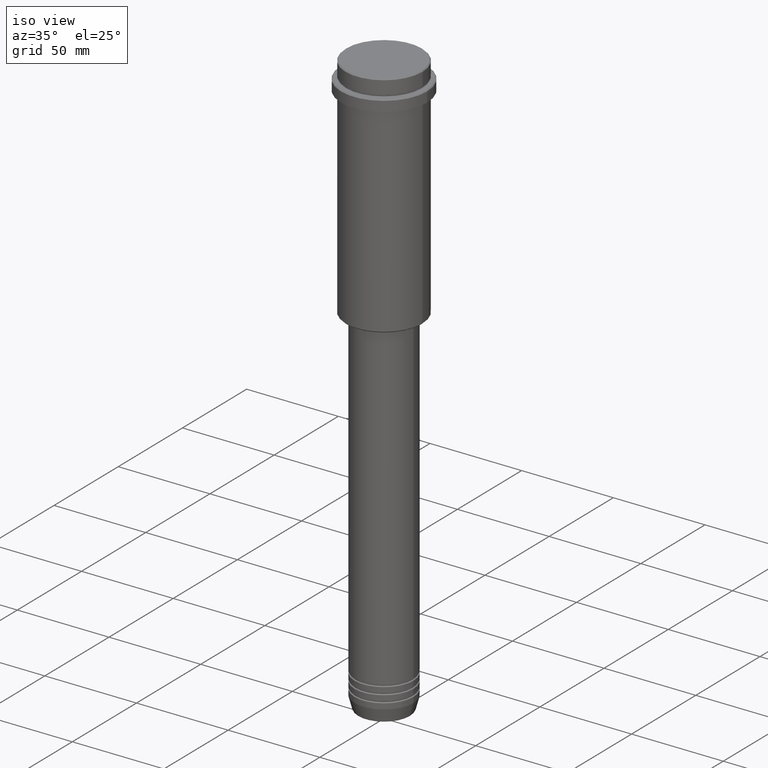
[diagram: clean part render]
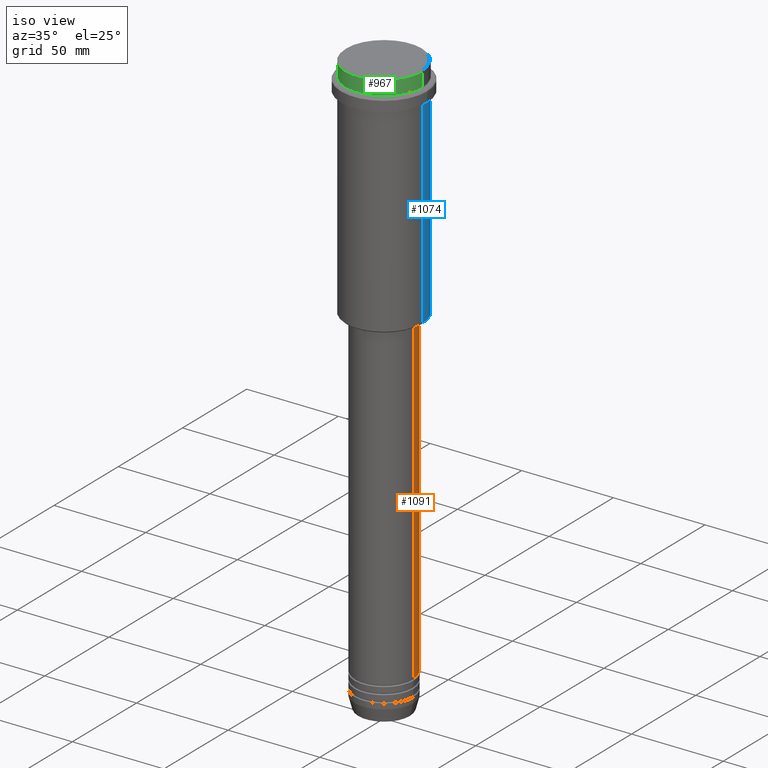
[diagram: same view with three faces highlighted in distinct colors, each labeled with its STEP entity id]
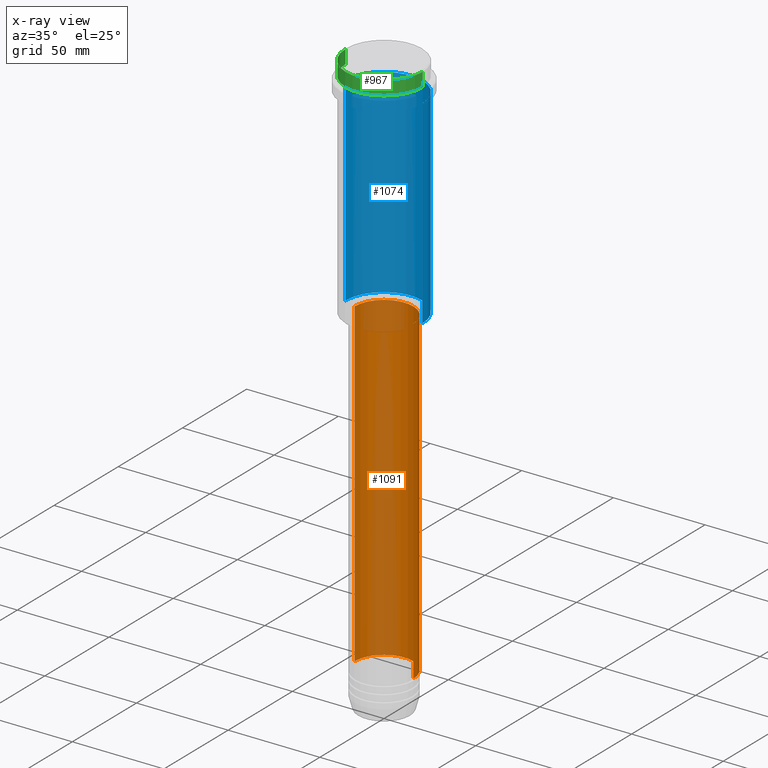
[diagram: x-ray of the same camera — body ghosted, the three highlighted faces saturated]
A machine part, iso view with three faces highlighted in distinct colors.
The next image is the same camera in x-ray (body ghosted, the three faces saturated) — at least one of them is partly hidden behind the body in this view.
Their STEP definitions:

[orange] entity #1091 — the highlighted cylindrical surface (edge-blend (fillet) strip) has radius 16 mm, axis along (-0, -0, 1).
#20 = EDGE_CURVE ( 'NONE', #558, #226, #1011, .T. ) ;
#53 = ORIENTED_EDGE ( 'NONE', *, *, #1264, .T. ) ;
#68 = CARTESIAN_POINT ( 'NONE',  ( 16.00000000000000355, 0.000000000000000000, -125.9999999999999147 ) ) ;
#226 = VERTEX_POINT ( 'NONE', #820 ) ;
#245 = ORIENTED_EDGE ( 'NONE', *, *, #479, .F. ) ;
#275 = EDGE_CURVE ( 'NONE', #1260, #226, #719, .T. ) ;
#326 = CYLINDRICAL_SURFACE ( 'NONE', #1113, 16.00000000000000000 ) ;
#352 = FACE_OUTER_BOUND ( 'NONE', #635, .T. ) ;
#353 = CARTESIAN_POINT ( 'NONE',  ( -16.00000000000000000, 1.959434878635765131E-15, -300.9999999999998863 ) ) ;
#385 = CIRCLE ( 'NONE', #1187, 16.00000000000000000 ) ;
#476 = DIRECTION ( 'NONE',  ( -0.000000000000000000, -0.000000000000000000, 1.000000000000000000 ) ) ;
#478 = CARTESIAN_POINT ( 'NONE',  ( 16.00000000000000000, 0.000000000000000000, 0.000000000000000000 ) ) ;
#479 = EDGE_CURVE ( 'NONE', #844, #1260, #630, .T. ) ;
#535 = ORIENTED_EDGE ( 'NONE', *, *, #20, .T. ) ;
#542 = DIRECTION ( 'NONE',  ( 1.000000000000000000, 0.000000000000000000, 0.000000000000000000 ) ) ;
#558 = VERTEX_POINT ( 'NONE', #353 ) ;
#572 = DIRECTION ( 'NONE',  ( 1.000000000000000000, 0.000000000000000000, 0.000000000000000000 ) ) ;
#630 = LINE ( 'NONE', #478, #1139 ) ;
#635 = EDGE_LOOP ( 'NONE', ( #53, #535, #1055, #245 ) ) ;
#691 = CARTESIAN_POINT ( 'NONE',  ( 16.00000000000000000, 0.000000000000000000, -300.9999999999998863 ) ) ;
#692 = VECTOR ( 'NONE', #476, 1000.000000000000000 ) ;
#719 = CIRCLE ( 'NONE', #1181, 16.00000000000000355 ) ;
#793 = CARTESIAN_POINT ( 'NONE',  ( 0.000000000000000000, 0.000000000000000000, 0.000000000000000000 ) ) ;
#820 = CARTESIAN_POINT ( 'NONE',  ( -16.00000000000000355, 1.959434878635765526E-15, -125.9999999999999147 ) ) ;
#844 = VERTEX_POINT ( 'NONE', #691 ) ;
#878 = DIRECTION ( 'NONE',  ( -0.000000000000000000, -0.000000000000000000, 1.000000000000000000 ) ) ;
#908 = DIRECTION ( 'NONE',  ( -0.000000000000000000, -0.000000000000000000, 1.000000000000000000 ) ) ;
#937 = CARTESIAN_POINT ( 'NONE',  ( 0.000000000000000000, 0.000000000000000000, -300.9999999999998863 ) ) ;
#1011 = LINE ( 'NONE', #1112, #692 ) ;
#1055 = ORIENTED_EDGE ( 'NONE', *, *, #275, .F. ) ;
#1091 = ADVANCED_FACE ( 'NONE', ( #352 ), #326, .T. ) ;
#1112 = CARTESIAN_POINT ( 'NONE',  ( -16.00000000000000000, 1.959434878635765131E-15, 0.000000000000000000 ) ) ;
#1113 = AXIS2_PLACEMENT_3D ( 'NONE', #793, #1118, #542 ) ;
#1118 = DIRECTION ( 'NONE',  ( -0.000000000000000000, -0.000000000000000000, 1.000000000000000000 ) ) ;
#1119 = CARTESIAN_POINT ( 'NONE',  ( 0.000000000000000000, 0.000000000000000000, -125.9999999999999147 ) ) ;
#1139 = VECTOR ( 'NONE', #878, 1000.000000000000000 ) ;
#1147 = DIRECTION ( 'NONE',  ( -0.000000000000000000, -0.000000000000000000, 1.000000000000000000 ) ) ;
#1181 = AXIS2_PLACEMENT_3D ( 'NONE', #1119, #1147, #572 ) ;
#1187 = AXIS2_PLACEMENT_3D ( 'NONE', #937, #908, #1240 ) ;
#1240 = DIRECTION ( 'NONE',  ( 1.000000000000000000, 0.000000000000000000, 0.000000000000000000 ) ) ;
#1260 = VERTEX_POINT ( 'NONE', #68 ) ;
#1264 = EDGE_CURVE ( 'NONE', #844, #558, #385, .T. ) ;

[blue] entity #1074 — the highlighted cylindrical surface (partial cylindrical patch) has radius 21 mm, axis along (-0, -0, 1).
#95 = CARTESIAN_POINT ( 'NONE',  ( -20.99999999999999645, 2.571758278209441267E-15, -124.4999999999999005 ) ) ;
#198 = EDGE_LOOP ( 'NONE', ( #416, #1199, #254, #1126 ) ) ;
#240 = CARTESIAN_POINT ( 'NONE',  ( -20.99999999999999645, 2.571758278209441267E-15, -16.00000000000000355 ) ) ;
#254 = ORIENTED_EDGE ( 'NONE', *, *, #1286, .F. ) ;
#280 = CARTESIAN_POINT ( 'NONE',  ( 20.99999999999999645, 0.000000000000000000, -16.00000000000000355 ) ) ;
#291 = AXIS2_PLACEMENT_3D ( 'NONE', #417, #1167, #398 ) ;
#309 = AXIS2_PLACEMENT_3D ( 'NONE', #1255, #493, #822 ) ;
#340 = CARTESIAN_POINT ( 'NONE',  ( 0.000000000000000000, 0.000000000000000000, 0.000000000000000000 ) ) ;
#379 = EDGE_CURVE ( 'NONE', #1414, #407, #831, .T. ) ;
#398 = DIRECTION ( 'NONE',  ( -1.000000000000000000, 0.000000000000000000, 0.000000000000000000 ) ) ;
#407 = VERTEX_POINT ( 'NONE', #280 ) ;
#416 = ORIENTED_EDGE ( 'NONE', *, *, #1380, .T. ) ;
#417 = CARTESIAN_POINT ( 'NONE',  ( 0.000000000000000000, 0.000000000000000000, -124.4999999999999005 ) ) ;
#493 = DIRECTION ( 'NONE',  ( -0.000000000000000000, -0.000000000000000000, 1.000000000000000000 ) ) ;
#603 = VECTOR ( 'NONE', #1056, 1000.000000000000000 ) ;
#611 = LINE ( 'NONE', #826, #973 ) ;
#667 = VERTEX_POINT ( 'NONE', #240 ) ;
#671 = CYLINDRICAL_SURFACE ( 'NONE', #1088, 20.99999999999999645 ) ;
#680 = FACE_OUTER_BOUND ( 'NONE', #198, .T. ) ;
#822 = DIRECTION ( 'NONE',  ( 1.000000000000000000, 0.000000000000000000, 0.000000000000000000 ) ) ;
#826 = CARTESIAN_POINT ( 'NONE',  ( -20.99999999999999645, 2.571758278209441267E-15, 0.000000000000000000 ) ) ;
#831 = LINE ( 'NONE', #1150, #603 ) ;
#840 = CARTESIAN_POINT ( 'NONE',  ( 20.99999999999999645, 0.000000000000000000, -124.4999999999999005 ) ) ;
#930 = CIRCLE ( 'NONE', #309, 20.99999999999999645 ) ;
#973 = VECTOR ( 'NONE', #1267, 1000.000000000000000 ) ;
#1056 = DIRECTION ( 'NONE',  ( -0.000000000000000000, -0.000000000000000000, 1.000000000000000000 ) ) ;
#1074 = ADVANCED_FACE ( 'NONE', ( #680 ), #671, .T. ) ;
#1088 = AXIS2_PLACEMENT_3D ( 'NONE', #340, #1213, #1107 ) ;
#1107 = DIRECTION ( 'NONE',  ( 1.000000000000000000, 0.000000000000000000, 0.000000000000000000 ) ) ;
#1126 = ORIENTED_EDGE ( 'NONE', *, *, #379, .F. ) ;
#1150 = CARTESIAN_POINT ( 'NONE',  ( 20.99999999999999645, 0.000000000000000000, 0.000000000000000000 ) ) ;
#1167 = DIRECTION ( 'NONE',  ( -0.000000000000000000, -0.000000000000000000, 1.000000000000000000 ) ) ;
#1199 = ORIENTED_EDGE ( 'NONE', *, *, #1374, .T. ) ;
#1208 = CIRCLE ( 'NONE', #291, 20.99999999999999645 ) ;
#1213 = DIRECTION ( 'NONE',  ( -0.000000000000000000, -0.000000000000000000, 1.000000000000000000 ) ) ;
#1255 = CARTESIAN_POINT ( 'NONE',  ( 0.000000000000000000, 0.000000000000000000, -16.00000000000000355 ) ) ;
#1267 = DIRECTION ( 'NONE',  ( -0.000000000000000000, -0.000000000000000000, 1.000000000000000000 ) ) ;
#1286 = EDGE_CURVE ( 'NONE', #407, #667, #930, .T. ) ;
#1314 = VERTEX_POINT ( 'NONE', #95 ) ;
#1374 = EDGE_CURVE ( 'NONE', #1314, #667, #611, .T. ) ;
#1380 = EDGE_CURVE ( 'NONE', #1414, #1314, #1208, .T. ) ;
#1414 = VERTEX_POINT ( 'NONE', #840 ) ;

[green] entity #967 — the highlighted cylindrical surface (partial cylindrical patch) has radius 21 mm, axis along (-0, -0, 1).
#2 = ORIENTED_EDGE ( 'NONE', *, *, #166, .T. ) ;
#17 = AXIS2_PLACEMENT_3D ( 'NONE', #1392, #842, #1050 ) ;
#38 = CIRCLE ( 'NONE', #266, 20.99999999999999645 ) ;
#45 = EDGE_CURVE ( 'NONE', #601, #761, #38, .T. ) ;
#56 = AXIS2_PLACEMENT_3D ( 'NONE', #986, #317, #93 ) ;
#93 = DIRECTION ( 'NONE',  ( 1.000000000000000000, 0.000000000000000000, 0.000000000000000000 ) ) ;
#140 = CARTESIAN_POINT ( 'NONE',  ( 0.000000000000000000, 0.000000000000000000, -7.999999999999998224 ) ) ;
#166 = EDGE_CURVE ( 'NONE', #935, #273, #1383, .T. ) ;
#208 = FACE_OUTER_BOUND ( 'NONE', #987, .T. ) ;
#219 = VECTOR ( 'NONE', #913, 1000.000000000000000 ) ;
#266 = AXIS2_PLACEMENT_3D ( 'NONE', #140, #843, #823 ) ;
#273 = VERTEX_POINT ( 'NONE', #795 ) ;
#317 = DIRECTION ( 'NONE',  ( 0.000000000000000000, 0.000000000000000000, -1.000000000000000000 ) ) ;
#348 = CARTESIAN_POINT ( 'NONE',  ( -20.99999999999999645, 2.571758278209441267E-15, -7.999999999999998224 ) ) ;
#367 = ORIENTED_EDGE ( 'NONE', *, *, #1131, .F. ) ;
#391 = LINE ( 'NONE', #1375, #219 ) ;
#538 = LINE ( 'NONE', #1100, #790 ) ;
#564 = DIRECTION ( 'NONE',  ( -0.000000000000000000, -0.000000000000000000, 1.000000000000000000 ) ) ;
#601 = VERTEX_POINT ( 'NONE', #348 ) ;
#625 = ORIENTED_EDGE ( 'NONE', *, *, #45, .T. ) ;
#761 = VERTEX_POINT ( 'NONE', #1371 ) ;
#790 = VECTOR ( 'NONE', #564, 1000.000000000000000 ) ;
#795 = CARTESIAN_POINT ( 'NONE',  ( -20.99999999999999645, 2.571758278209441267E-15, -0.4999999999999518718 ) ) ;
#823 = DIRECTION ( 'NONE',  ( 1.000000000000000000, 0.000000000000000000, 0.000000000000000000 ) ) ;
#842 = DIRECTION ( 'NONE',  ( -0.000000000000000000, -0.000000000000000000, 1.000000000000000000 ) ) ;
#843 = DIRECTION ( 'NONE',  ( -0.000000000000000000, -0.000000000000000000, 1.000000000000000000 ) ) ;
#856 = CYLINDRICAL_SURFACE ( 'NONE', #17, 20.99999999999999645 ) ;
#913 = DIRECTION ( 'NONE',  ( -0.000000000000000000, -0.000000000000000000, 1.000000000000000000 ) ) ;
#935 = VERTEX_POINT ( 'NONE', #1179 ) ;
#967 = ADVANCED_FACE ( 'NONE', ( #208 ), #856, .T. ) ;
#986 = CARTESIAN_POINT ( 'NONE',  ( 0.000000000000000000, 0.000000000000000000, -0.4999999999999518718 ) ) ;
#987 = EDGE_LOOP ( 'NONE', ( #367, #625, #1029, #2 ) ) ;
#1029 = ORIENTED_EDGE ( 'NONE', *, *, #1192, .T. ) ;
#1050 = DIRECTION ( 'NONE',  ( 1.000000000000000000, 0.000000000000000000, 0.000000000000000000 ) ) ;
#1100 = CARTESIAN_POINT ( 'NONE',  ( -20.99999999999999645, 2.571758278209441267E-15, 0.000000000000000000 ) ) ;
#1131 = EDGE_CURVE ( 'NONE', #601, #273, #538, .T. ) ;
#1179 = CARTESIAN_POINT ( 'NONE',  ( 20.99999999999999645, 0.000000000000000000, -0.4999999999999518718 ) ) ;
#1192 = EDGE_CURVE ( 'NONE', #761, #935, #391, .T. ) ;
#1371 = CARTESIAN_POINT ( 'NONE',  ( 20.99999999999999645, 0.000000000000000000, -7.999999999999998224 ) ) ;
#1375 = CARTESIAN_POINT ( 'NONE',  ( 20.99999999999999645, 0.000000000000000000, 0.000000000000000000 ) ) ;
#1383 = CIRCLE ( 'NONE', #56, 20.99999999999999645 ) ;
#1392 = CARTESIAN_POINT ( 'NONE',  ( 0.000000000000000000, 0.000000000000000000, 0.000000000000000000 ) ) ;